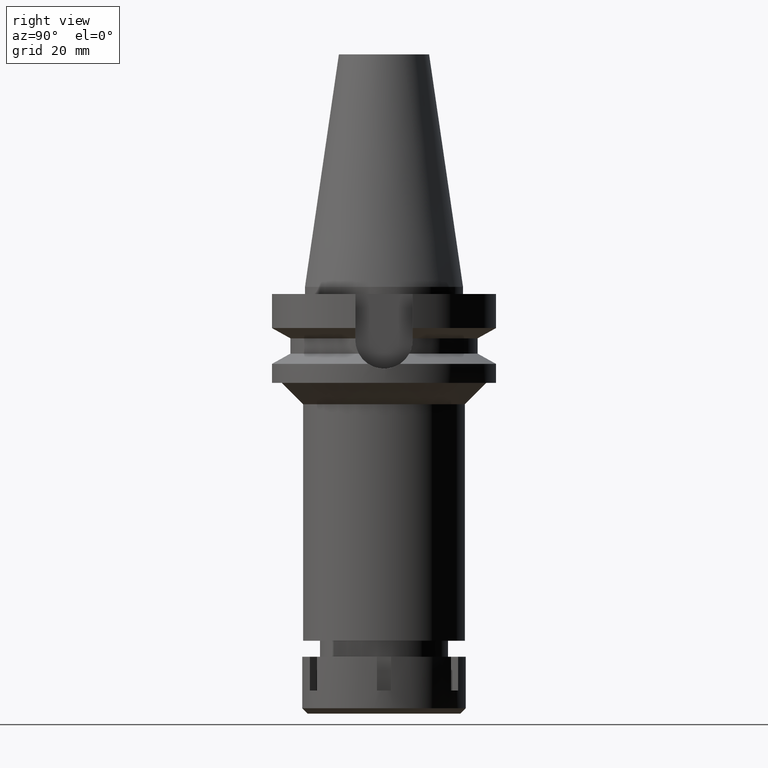
[diagram: clean part render]
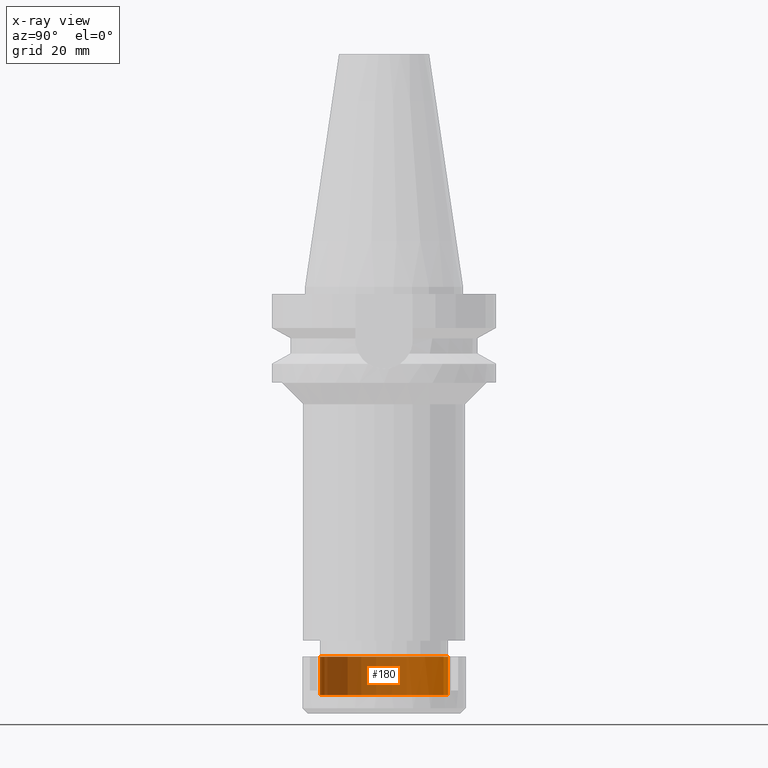
[diagram: x-ray — body ghosted, one internal face saturated and labeled with its STEP entity id]
A machine part, right view, then the same camera in x-ray: the body is ghosted and one INTERNAL B-rep face — a face not visible from any outside direction — is saturated and labeled: STEP entity #180.
In plain terms, the highlighted cylindrical surface (partial cylindrical patch) has radius 18 mm, axis along (0, 0, -1).
Its self-contained STEP definition (entity closure, byte-faithful):
#116 = CYLINDRICAL_SURFACE ( 'NONE', #1231, 18.00000000000000000 ) ;
#180 = ADVANCED_FACE ( 'NONE', ( #2305 ), #116, .F. ) ;
#200 = EDGE_CURVE ( 'NONE', #365, #2929, #957, .T. ) ;
#274 = CARTESIAN_POINT ( 'NONE',  ( 0.0000000000000000000, -18.00000000000000000, 0.0000000000000000000 ) ) ;
#365 = VERTEX_POINT ( 'NONE', #2144 ) ;
#538 = EDGE_CURVE ( 'NONE', #552, #2513, #2498, .T. ) ;
#552 = VERTEX_POINT ( 'NONE', #1065 ) ;
#581 = CIRCLE ( 'NONE', #706, 18.00000000000000000 ) ;
#706 = AXIS2_PLACEMENT_3D ( 'NONE', #1538, #3218, #1242 ) ;
#957 = LINE ( 'NONE', #2017, #998 ) ;
#998 = VECTOR ( 'NONE', #2625, 1000.000000000000000 ) ;
#1008 = CIRCLE ( 'NONE', #2475, 18.00000000000000000 ) ;
#1065 = CARTESIAN_POINT ( 'NONE',  ( 0.0000000000000000000, 18.00000000000000000, -10.80000000000000071 ) ) ;
#1089 = ORIENTED_EDGE ( 'NONE', *, *, #200, .F. ) ;
#1231 = AXIS2_PLACEMENT_3D ( 'NONE', #2000, #3142, #1800 ) ;
#1242 = DIRECTION ( 'NONE',  ( 0.0000000000000000000, 1.000000000000000000, 0.0000000000000000000 ) ) ;
#1404 = VECTOR ( 'NONE', #2239, 1000.000000000000000 ) ;
#1500 = EDGE_CURVE ( 'NONE', #365, #552, #1008, .T. ) ;
#1538 = CARTESIAN_POINT ( 'NONE',  ( 0.0000000000000000000, 0.0000000000000000000, 0.0000000000000000000 ) ) ;
#1716 = ORIENTED_EDGE ( 'NONE', *, *, #538, .T. ) ;
#1800 = DIRECTION ( 'NONE',  ( 0.0000000000000000000, -1.000000000000000000, 0.0000000000000000000 ) ) ;
#2000 = CARTESIAN_POINT ( 'NONE',  ( 0.0000000000000000000, 0.0000000000000000000, 0.0000000000000000000 ) ) ;
#2017 = CARTESIAN_POINT ( 'NONE',  ( 0.0000000000000000000, -18.00000000000000000, -10.80000000000000071 ) ) ;
#2144 = CARTESIAN_POINT ( 'NONE',  ( 0.0000000000000000000, -18.00000000000000000, -10.80000000000000071 ) ) ;
#2239 = DIRECTION ( 'NONE',  ( 0.0000000000000000000, 0.0000000000000000000, 1.000000000000000000 ) ) ;
#2252 = ORIENTED_EDGE ( 'NONE', *, *, #2765, .T. ) ;
#2264 = CARTESIAN_POINT ( 'NONE',  ( 0.0000000000000000000, 18.00000000000000000, 0.0000000000000000000 ) ) ;
#2268 = CARTESIAN_POINT ( 'NONE',  ( 0.0000000000000000000, 0.0000000000000000000, -10.80000000000000071 ) ) ;
#2305 = FACE_OUTER_BOUND ( 'NONE', #2934, .T. ) ;
#2475 = AXIS2_PLACEMENT_3D ( 'NONE', #2268, #2869, #3403 ) ;
#2498 = LINE ( 'NONE', #3078, #1404 ) ;
#2513 = VERTEX_POINT ( 'NONE', #2264 ) ;
#2625 = DIRECTION ( 'NONE',  ( 0.0000000000000000000, 0.0000000000000000000, 1.000000000000000000 ) ) ;
#2655 = ORIENTED_EDGE ( 'NONE', *, *, #1500, .T. ) ;
#2765 = EDGE_CURVE ( 'NONE', #2513, #2929, #581, .T. ) ;
#2869 = DIRECTION ( 'NONE',  ( 0.0000000000000000000, 0.0000000000000000000, -1.000000000000000000 ) ) ;
#2929 = VERTEX_POINT ( 'NONE', #274 ) ;
#2934 = EDGE_LOOP ( 'NONE', ( #2252, #1089, #2655, #1716 ) ) ;
#3078 = CARTESIAN_POINT ( 'NONE',  ( 0.0000000000000000000, 18.00000000000000000, -10.80000000000000071 ) ) ;
#3142 = DIRECTION ( 'NONE',  ( 0.0000000000000000000, 0.0000000000000000000, -1.000000000000000000 ) ) ;
#3218 = DIRECTION ( 'NONE',  ( 0.0000000000000000000, 0.0000000000000000000, 1.000000000000000000 ) ) ;
#3403 = DIRECTION ( 'NONE',  ( 0.0000000000000000000, -1.000000000000000000, 0.0000000000000000000 ) ) ;